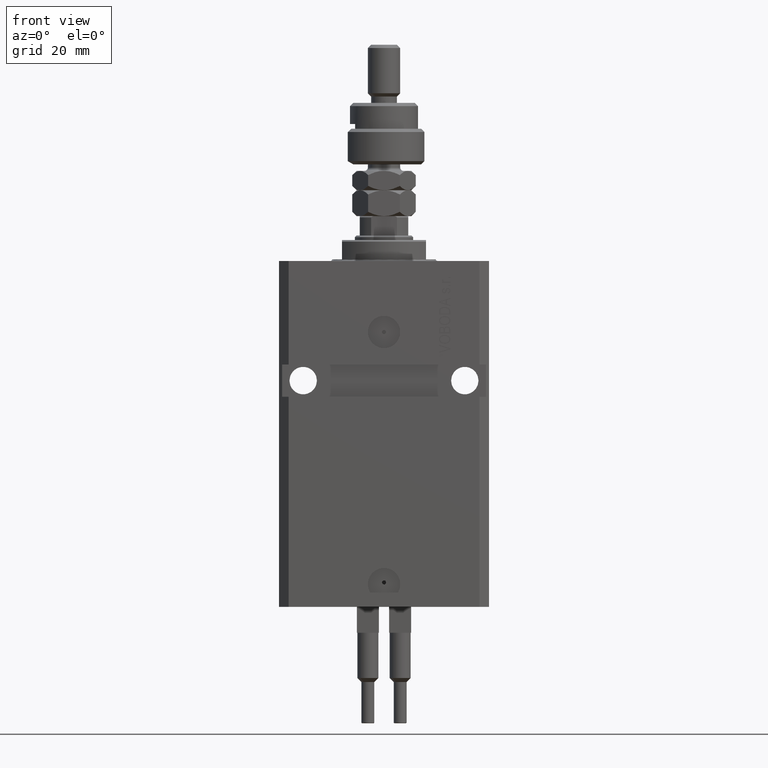
[diagram: clean part render]
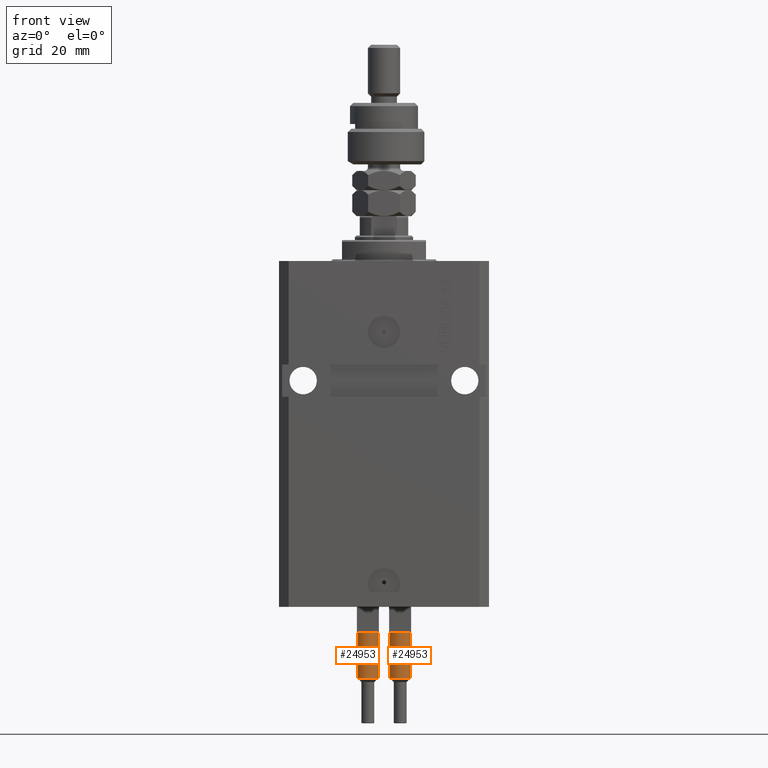
[diagram: same view with one multi-face feature highlighted, each face labeled with its STEP entity id]
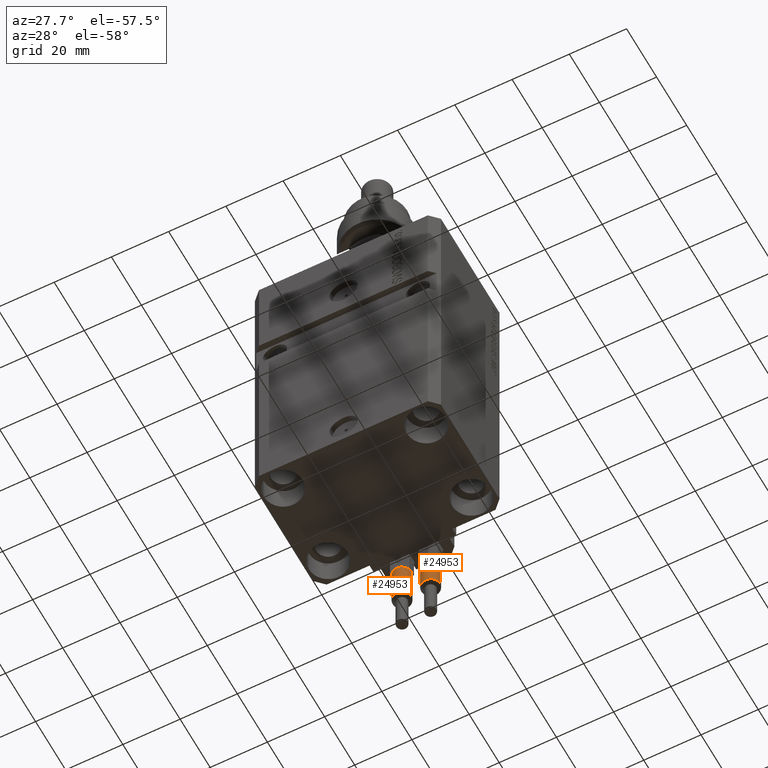
[diagram: same view with one multi-face feature highlighted, each face labeled with its STEP entity id]
A machine part, front view. The highlighted faces form ONE feature: a constant-radius fillet chain: 2 tangent blend faces with common blend radius 3.25 mm. The faces share edges in the B-rep.
A second angle (auxiliary view) of the same feature is appended — it is thin or edge-on in the first view.
Their STEP definitions:
[1] entity #24953 (Cylinder):
#399 = CYLINDRICAL_SURFACE ( 'NONE', #19576, 3.250000000000000444 ) ;
#473 = DIRECTION ( 'NONE',  ( 1.000000000000000000, 0.000000000000000000, 0.000000000000000000 ) ) ;
#693 = CIRCLE ( 'NONE', #40073, 3.250000000000000444 ) ;
#2758 = VECTOR ( 'NONE', #22712, 1000.000000000000000 ) ;
#2924 = ORIENTED_EDGE ( 'NONE', *, *, #29817, .T. ) ;
#6435 = EDGE_CURVE ( 'NONE', #20454, #12879, #693, .T. ) ;
#7056 = CARTESIAN_POINT ( 'NONE',  ( 3.250000000000000444, 3.980102097228898231E-16, 56.00000000000000000 ) ) ;
#7805 = CARTESIAN_POINT ( 'NONE',  ( -2.883140648667699146, -1.500000000000000000, 40.00000000000000000 ) ) ;
#9735 = EDGE_LOOP ( 'NONE', ( #27637, #2924, #36103, #33043, #33684, #14515 ) ) ;
#10148 = LINE ( 'NONE', #7056, #2758 ) ;
#10388 = CARTESIAN_POINT ( 'NONE',  ( 2.883140648667699146, -1.500000000000000000, 40.00000000000000000 ) ) ;
#10527 = VERTEX_POINT ( 'NONE', #10388 ) ;
#10595 = CARTESIAN_POINT ( 'NONE',  ( 3.250000000000000444, 3.980102097228898231E-16, 53.99999999999998579 ) ) ;
#12282 = DIRECTION ( 'NONE',  ( 0.000000000000000000, 0.000000000000000000, 1.000000000000000000 ) ) ;
#12401 = CIRCLE ( 'NONE', #48496, 3.250000000000000444 ) ;
#12879 = VERTEX_POINT ( 'NONE', #7805 ) ;
#13617 = CARTESIAN_POINT ( 'NONE',  ( 0.000000000000000000, 0.000000000000000000, 40.00000000000000000 ) ) ;
#14515 = ORIENTED_EDGE ( 'NONE', *, *, #35052, .T. ) ;
#14834 = EDGE_CURVE ( 'NONE', #25573, #20454, #40202, .T. ) ;
#15962 = AXIS2_PLACEMENT_3D ( 'NONE', #13617, #40867, #37504 ) ;
#16289 = DIRECTION ( 'NONE',  ( -0.000000000000000000, -0.000000000000000000, -1.000000000000000000 ) ) ;
#19576 = AXIS2_PLACEMENT_3D ( 'NONE', #31709, #34809, #50498 ) ;
#20454 = VERTEX_POINT ( 'NONE', #50146 ) ;
#21837 = CARTESIAN_POINT ( 'NONE',  ( 0.000000000000000000, 0.000000000000000000, 40.00000000000000000 ) ) ;
#22085 = DIRECTION ( 'NONE',  ( 1.000000000000000000, 0.000000000000000000, 0.000000000000000000 ) ) ;
#22712 = DIRECTION ( 'NONE',  ( -0.000000000000000000, -0.000000000000000000, -1.000000000000000000 ) ) ;
#24245 = CARTESIAN_POINT ( 'NONE',  ( 3.250000000000000444, 3.980102097228898231E-16, 40.00000000000000000 ) ) ;
#24953 = ADVANCED_FACE ( 'NONE', ( #39697 ), #399, .T. ) ;
#25573 = VERTEX_POINT ( 'NONE', #38551 ) ;
#27637 = ORIENTED_EDGE ( 'NONE', *, *, #37968, .F. ) ;
#28853 = CIRCLE ( 'NONE', #49400, 3.250000000000000444 ) ;
#29817 = EDGE_CURVE ( 'NONE', #41026, #25573, #12401, .T. ) ;
#31709 = CARTESIAN_POINT ( 'NONE',  ( 0.000000000000000000, 0.000000000000000000, 56.00000000000000000 ) ) ;
#33043 = ORIENTED_EDGE ( 'NONE', *, *, #6435, .T. ) ;
#33684 = ORIENTED_EDGE ( 'NONE', *, *, #41278, .T. ) ;
#34372 = DIRECTION ( 'NONE',  ( 1.000000000000000000, 0.000000000000000000, 0.000000000000000000 ) ) ;
#34809 = DIRECTION ( 'NONE',  ( -0.000000000000000000, -0.000000000000000000, -1.000000000000000000 ) ) ;
#35052 = EDGE_CURVE ( 'NONE', #10527, #43296, #28853, .T. ) ;
#36103 = ORIENTED_EDGE ( 'NONE', *, *, #14834, .T. ) ;
#37003 = DIRECTION ( 'NONE',  ( 0.000000000000000000, 0.000000000000000000, 1.000000000000000000 ) ) ;
#37504 = DIRECTION ( 'NONE',  ( 1.000000000000000000, 0.000000000000000000, 0.000000000000000000 ) ) ;
#37968 = EDGE_CURVE ( 'NONE', #41026, #43296, #10148, .T. ) ;
#38551 = CARTESIAN_POINT ( 'NONE',  ( -3.250000000000000444, 0.000000000000000000, 53.99999999999998579 ) ) ;
#39697 = FACE_OUTER_BOUND ( 'NONE', #9735, .T. ) ;
#40073 = AXIS2_PLACEMENT_3D ( 'NONE', #47227, #12282, #473 ) ;
#40202 = LINE ( 'NONE', #44317, #42018 ) ;
#40867 = DIRECTION ( 'NONE',  ( 0.000000000000000000, 0.000000000000000000, 1.000000000000000000 ) ) ;
#41026 = VERTEX_POINT ( 'NONE', #10595 ) ;
#41278 = EDGE_CURVE ( 'NONE', #12879, #10527, #43058, .T. ) ;
#42018 = VECTOR ( 'NONE', #16289, 1000.000000000000000 ) ;
#43058 = CIRCLE ( 'NONE', #15962, 3.250000000000000444 ) ;
#43296 = VERTEX_POINT ( 'NONE', #24245 ) ;
#44317 = CARTESIAN_POINT ( 'NONE',  ( -3.250000000000000444, 0.000000000000000000, 56.00000000000000000 ) ) ;
#45955 = DIRECTION ( 'NONE',  ( 0.000000000000000000, 0.000000000000000000, -1.000000000000000000 ) ) ;
#47227 = CARTESIAN_POINT ( 'NONE',  ( 0.000000000000000000, 0.000000000000000000, 40.00000000000000000 ) ) ;
#48496 = AXIS2_PLACEMENT_3D ( 'NONE', #50563, #45955, #34372 ) ;
#49400 = AXIS2_PLACEMENT_3D ( 'NONE', #21837, #37003, #22085 ) ;
#50146 = CARTESIAN_POINT ( 'NONE',  ( -3.250000000000000444, 0.000000000000000000, 40.00000000000000000 ) ) ;
#50498 = DIRECTION ( 'NONE',  ( -1.000000000000000000, 0.000000000000000000, 0.000000000000000000 ) ) ;
#50563 = CARTESIAN_POINT ( 'NONE',  ( 0.000000000000000000, 0.000000000000000000, 53.99999999999998579 ) ) ;
[2] entity #24953 (Cylinder):
#399 = CYLINDRICAL_SURFACE ( 'NONE', #19576, 3.250000000000000444 ) ;
#473 = DIRECTION ( 'NONE',  ( 1.000000000000000000, 0.000000000000000000, 0.000000000000000000 ) ) ;
#693 = CIRCLE ( 'NONE', #40073, 3.250000000000000444 ) ;
#2758 = VECTOR ( 'NONE', #22712, 1000.000000000000000 ) ;
#2924 = ORIENTED_EDGE ( 'NONE', *, *, #29817, .T. ) ;
#6435 = EDGE_CURVE ( 'NONE', #20454, #12879, #693, .T. ) ;
#7056 = CARTESIAN_POINT ( 'NONE',  ( 3.250000000000000444, 3.980102097228898231E-16, 56.00000000000000000 ) ) ;
#7805 = CARTESIAN_POINT ( 'NONE',  ( -2.883140648667699146, -1.500000000000000000, 40.00000000000000000 ) ) ;
#9735 = EDGE_LOOP ( 'NONE', ( #27637, #2924, #36103, #33043, #33684, #14515 ) ) ;
#10148 = LINE ( 'NONE', #7056, #2758 ) ;
#10388 = CARTESIAN_POINT ( 'NONE',  ( 2.883140648667699146, -1.500000000000000000, 40.00000000000000000 ) ) ;
#10527 = VERTEX_POINT ( 'NONE', #10388 ) ;
#10595 = CARTESIAN_POINT ( 'NONE',  ( 3.250000000000000444, 3.980102097228898231E-16, 53.99999999999998579 ) ) ;
#12282 = DIRECTION ( 'NONE',  ( 0.000000000000000000, 0.000000000000000000, 1.000000000000000000 ) ) ;
#12401 = CIRCLE ( 'NONE', #48496, 3.250000000000000444 ) ;
#12879 = VERTEX_POINT ( 'NONE', #7805 ) ;
#13617 = CARTESIAN_POINT ( 'NONE',  ( 0.000000000000000000, 0.000000000000000000, 40.00000000000000000 ) ) ;
#14515 = ORIENTED_EDGE ( 'NONE', *, *, #35052, .T. ) ;
#14834 = EDGE_CURVE ( 'NONE', #25573, #20454, #40202, .T. ) ;
#15962 = AXIS2_PLACEMENT_3D ( 'NONE', #13617, #40867, #37504 ) ;
#16289 = DIRECTION ( 'NONE',  ( -0.000000000000000000, -0.000000000000000000, -1.000000000000000000 ) ) ;
#19576 = AXIS2_PLACEMENT_3D ( 'NONE', #31709, #34809, #50498 ) ;
#20454 = VERTEX_POINT ( 'NONE', #50146 ) ;
#21837 = CARTESIAN_POINT ( 'NONE',  ( 0.000000000000000000, 0.000000000000000000, 40.00000000000000000 ) ) ;
#22085 = DIRECTION ( 'NONE',  ( 1.000000000000000000, 0.000000000000000000, 0.000000000000000000 ) ) ;
#22712 = DIRECTION ( 'NONE',  ( -0.000000000000000000, -0.000000000000000000, -1.000000000000000000 ) ) ;
#24245 = CARTESIAN_POINT ( 'NONE',  ( 3.250000000000000444, 3.980102097228898231E-16, 40.00000000000000000 ) ) ;
#24953 = ADVANCED_FACE ( 'NONE', ( #39697 ), #399, .T. ) ;
#25573 = VERTEX_POINT ( 'NONE', #38551 ) ;
#27637 = ORIENTED_EDGE ( 'NONE', *, *, #37968, .F. ) ;
#28853 = CIRCLE ( 'NONE', #49400, 3.250000000000000444 ) ;
#29817 = EDGE_CURVE ( 'NONE', #41026, #25573, #12401, .T. ) ;
#31709 = CARTESIAN_POINT ( 'NONE',  ( 0.000000000000000000, 0.000000000000000000, 56.00000000000000000 ) ) ;
#33043 = ORIENTED_EDGE ( 'NONE', *, *, #6435, .T. ) ;
#33684 = ORIENTED_EDGE ( 'NONE', *, *, #41278, .T. ) ;
#34372 = DIRECTION ( 'NONE',  ( 1.000000000000000000, 0.000000000000000000, 0.000000000000000000 ) ) ;
#34809 = DIRECTION ( 'NONE',  ( -0.000000000000000000, -0.000000000000000000, -1.000000000000000000 ) ) ;
#35052 = EDGE_CURVE ( 'NONE', #10527, #43296, #28853, .T. ) ;
#36103 = ORIENTED_EDGE ( 'NONE', *, *, #14834, .T. ) ;
#37003 = DIRECTION ( 'NONE',  ( 0.000000000000000000, 0.000000000000000000, 1.000000000000000000 ) ) ;
#37504 = DIRECTION ( 'NONE',  ( 1.000000000000000000, 0.000000000000000000, 0.000000000000000000 ) ) ;
#37968 = EDGE_CURVE ( 'NONE', #41026, #43296, #10148, .T. ) ;
#38551 = CARTESIAN_POINT ( 'NONE',  ( -3.250000000000000444, 0.000000000000000000, 53.99999999999998579 ) ) ;
#39697 = FACE_OUTER_BOUND ( 'NONE', #9735, .T. ) ;
#40073 = AXIS2_PLACEMENT_3D ( 'NONE', #47227, #12282, #473 ) ;
#40202 = LINE ( 'NONE', #44317, #42018 ) ;
#40867 = DIRECTION ( 'NONE',  ( 0.000000000000000000, 0.000000000000000000, 1.000000000000000000 ) ) ;
#41026 = VERTEX_POINT ( 'NONE', #10595 ) ;
#41278 = EDGE_CURVE ( 'NONE', #12879, #10527, #43058, .T. ) ;
#42018 = VECTOR ( 'NONE', #16289, 1000.000000000000000 ) ;
#43058 = CIRCLE ( 'NONE', #15962, 3.250000000000000444 ) ;
#43296 = VERTEX_POINT ( 'NONE', #24245 ) ;
#44317 = CARTESIAN_POINT ( 'NONE',  ( -3.250000000000000444, 0.000000000000000000, 56.00000000000000000 ) ) ;
#45955 = DIRECTION ( 'NONE',  ( 0.000000000000000000, 0.000000000000000000, -1.000000000000000000 ) ) ;
#47227 = CARTESIAN_POINT ( 'NONE',  ( 0.000000000000000000, 0.000000000000000000, 40.00000000000000000 ) ) ;
#48496 = AXIS2_PLACEMENT_3D ( 'NONE', #50563, #45955, #34372 ) ;
#49400 = AXIS2_PLACEMENT_3D ( 'NONE', #21837, #37003, #22085 ) ;
#50146 = CARTESIAN_POINT ( 'NONE',  ( -3.250000000000000444, 0.000000000000000000, 40.00000000000000000 ) ) ;
#50498 = DIRECTION ( 'NONE',  ( -1.000000000000000000, 0.000000000000000000, 0.000000000000000000 ) ) ;
#50563 = CARTESIAN_POINT ( 'NONE',  ( 0.000000000000000000, 0.000000000000000000, 53.99999999999998579 ) ) ;